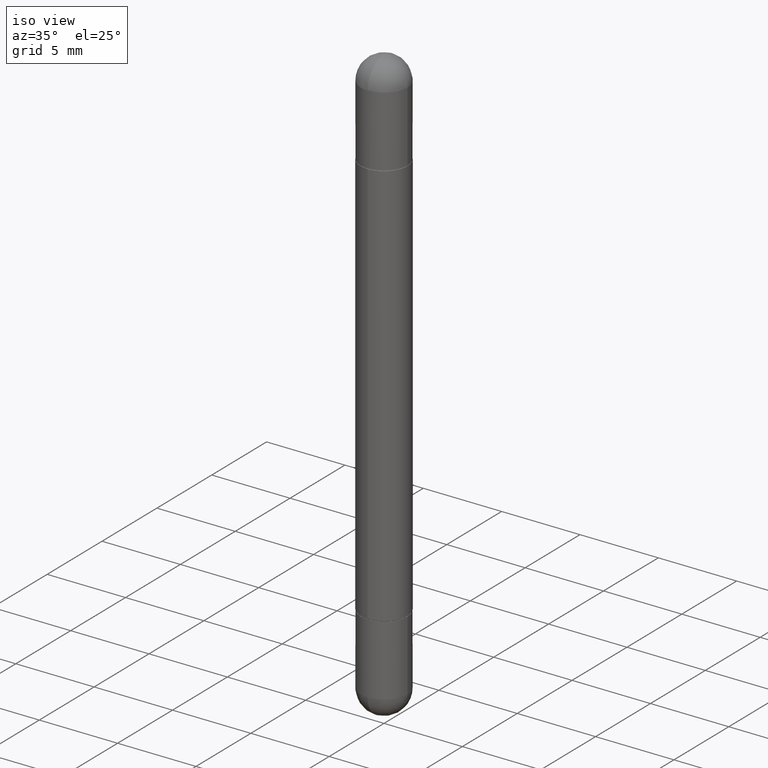
[diagram: clean part render]
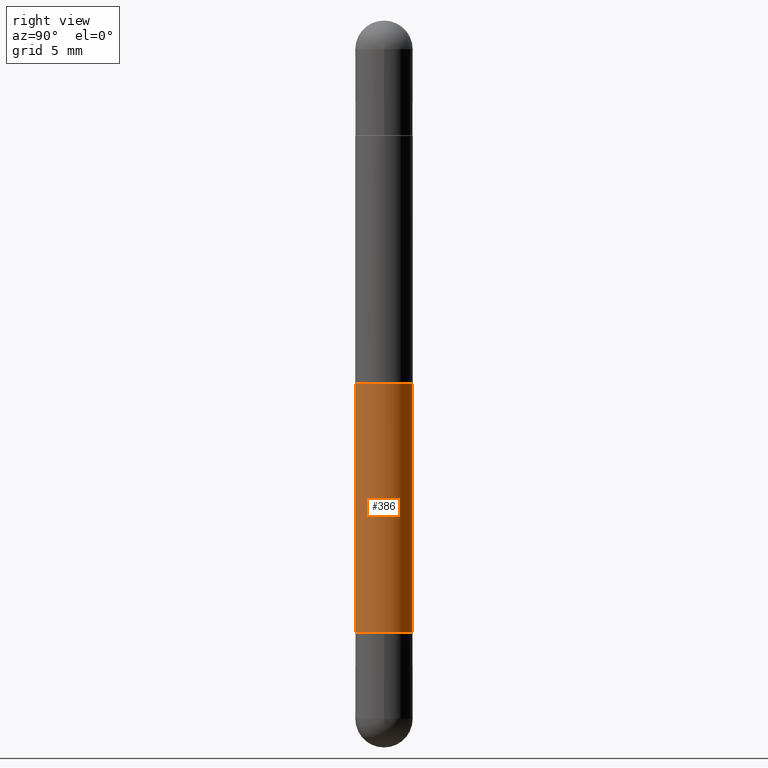
[diagram: tour spotlight — one face highlighted and labeled with its STEP entity id]
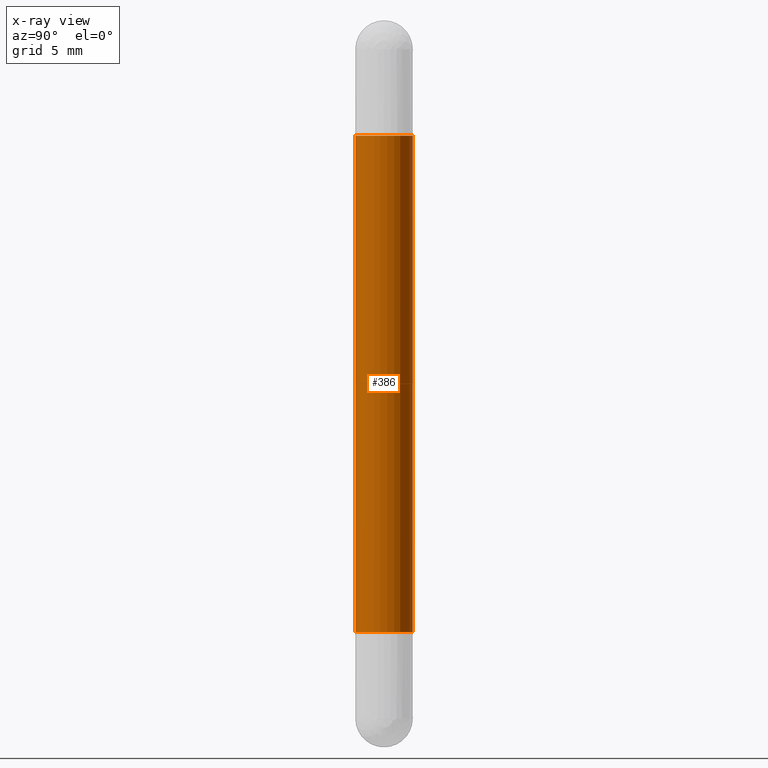
[diagram: x-ray of the same camera — body ghosted, this tour face saturated]
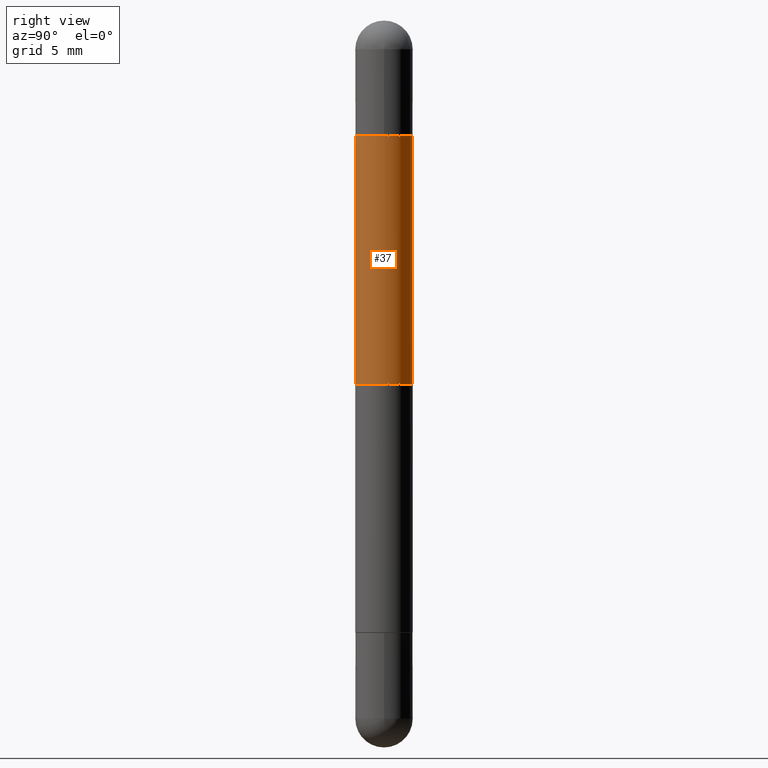
[diagram: tour spotlight — one face highlighted and labeled with its STEP entity id]
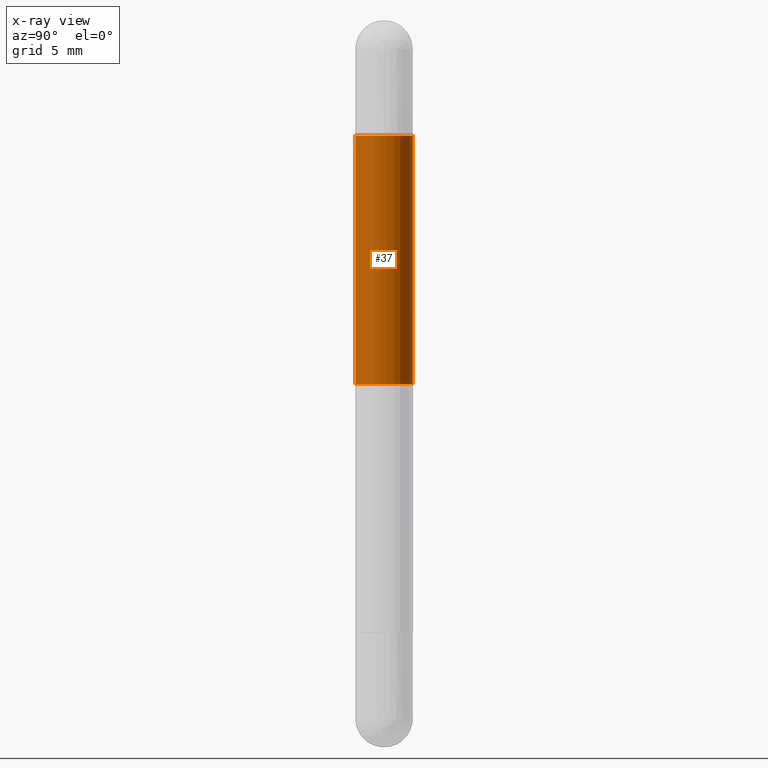
[diagram: x-ray of the same camera — body ghosted, this tour face saturated]
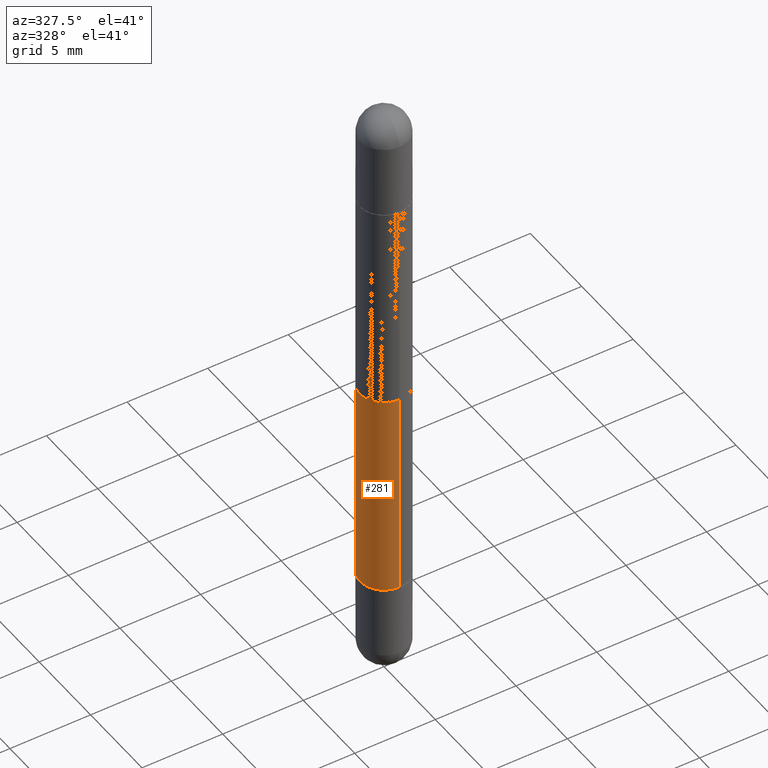
[diagram: tour spotlight — one face highlighted and labeled with its STEP entity id]
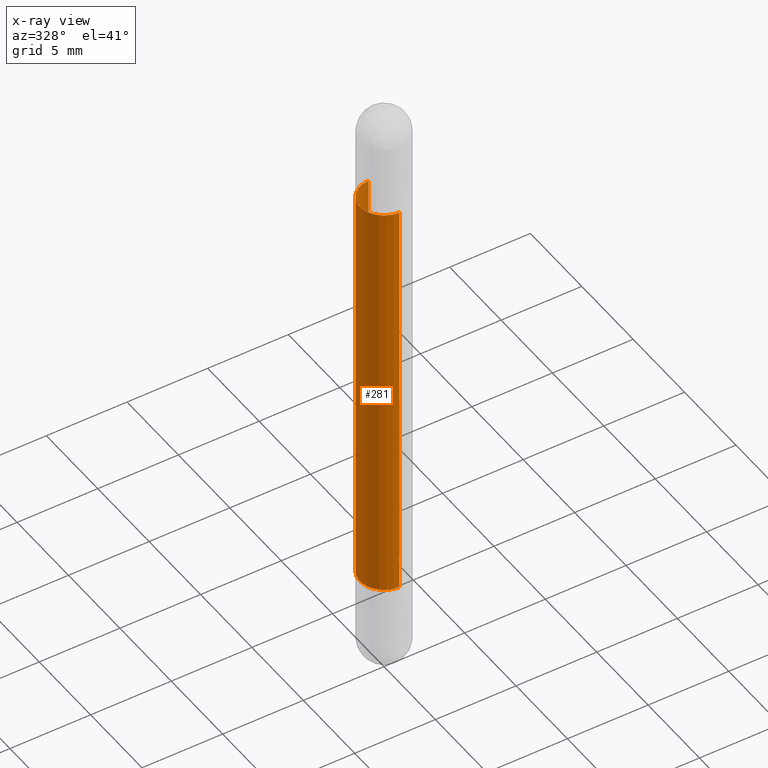
[diagram: x-ray of the same camera — body ghosted, this tour face saturated]
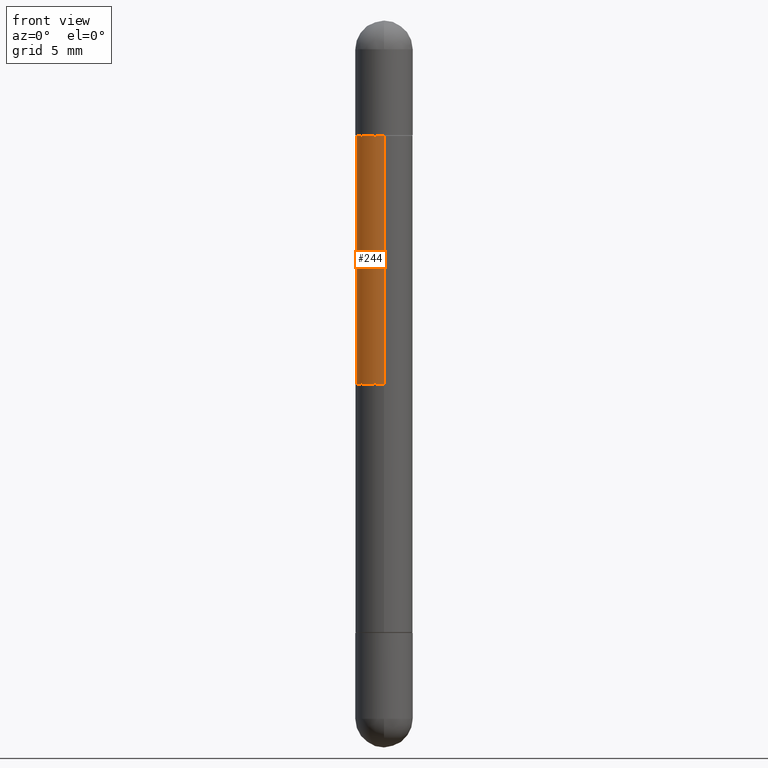
[diagram: tour spotlight — one face highlighted and labeled with its STEP entity id]
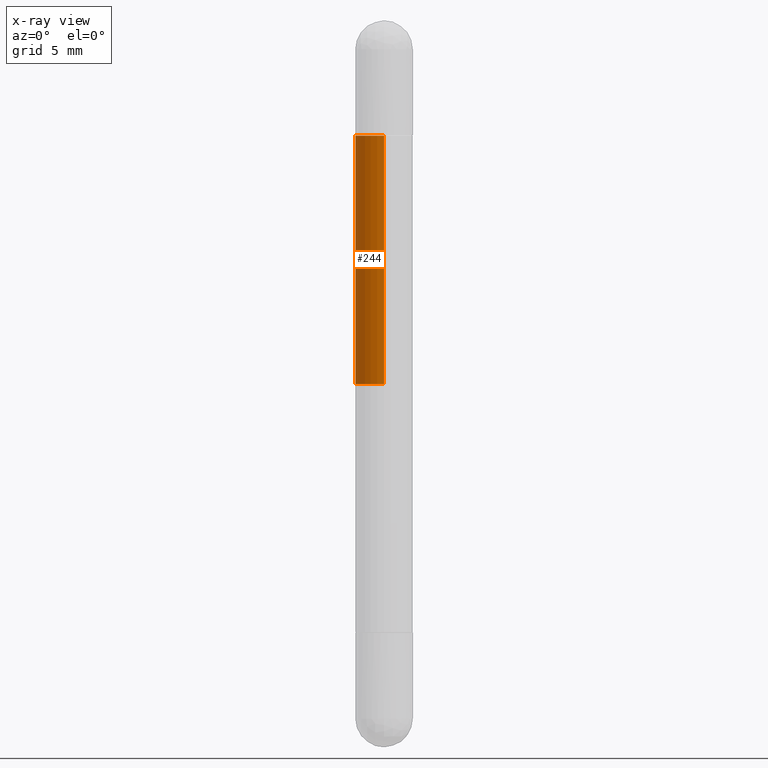
[diagram: x-ray of the same camera — body ghosted, this tour face saturated]
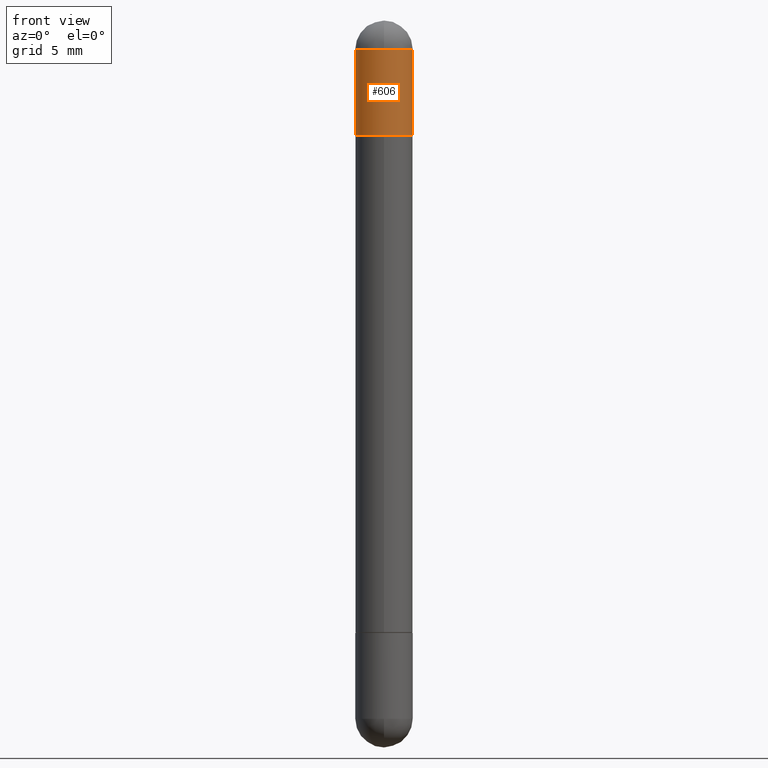
[diagram: tour spotlight — one face highlighted and labeled with its STEP entity id]
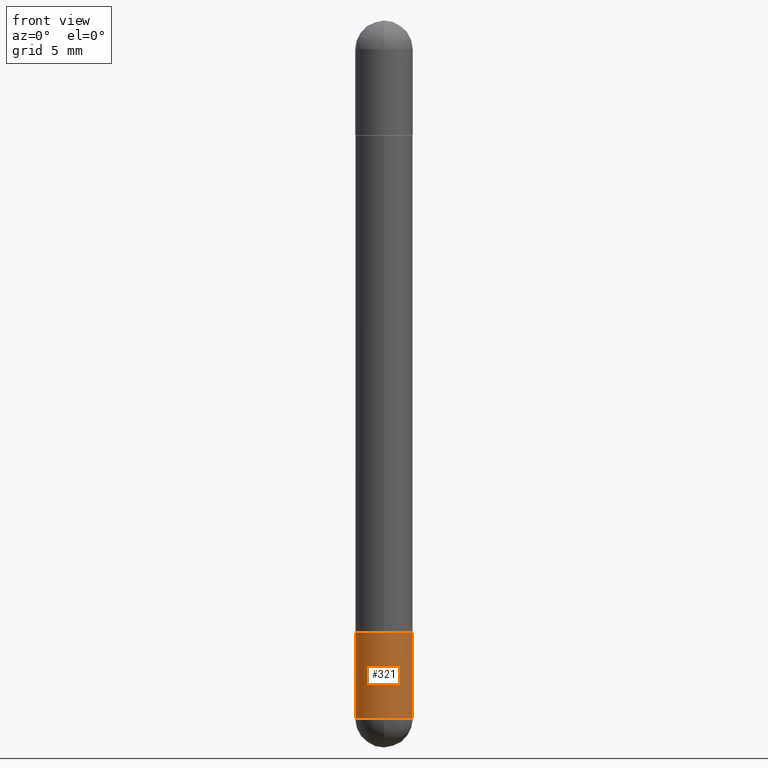
[diagram: tour spotlight — one face highlighted and labeled with its STEP entity id]
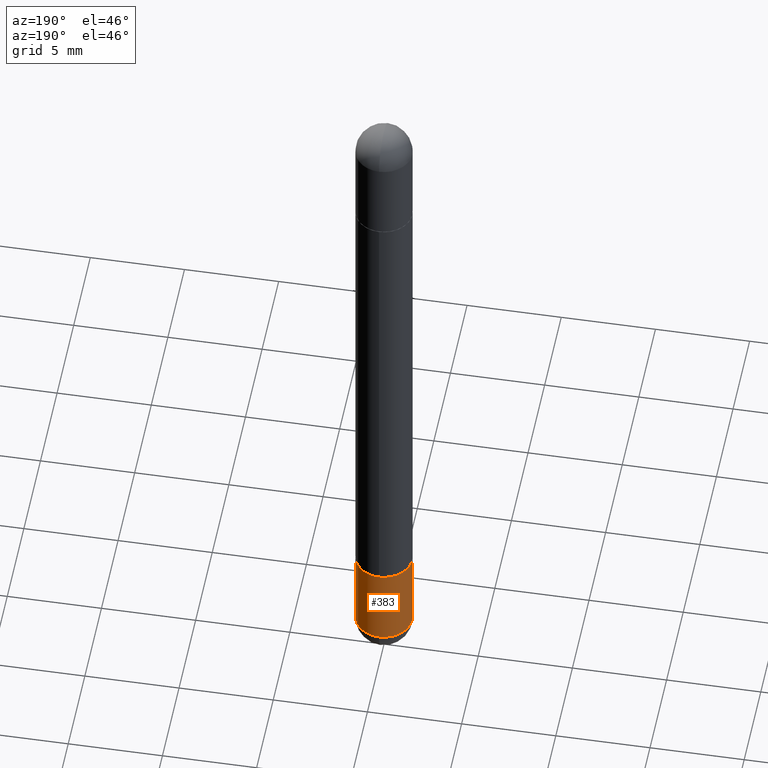
[diagram: tour spotlight — one face highlighted and labeled with its STEP entity id]
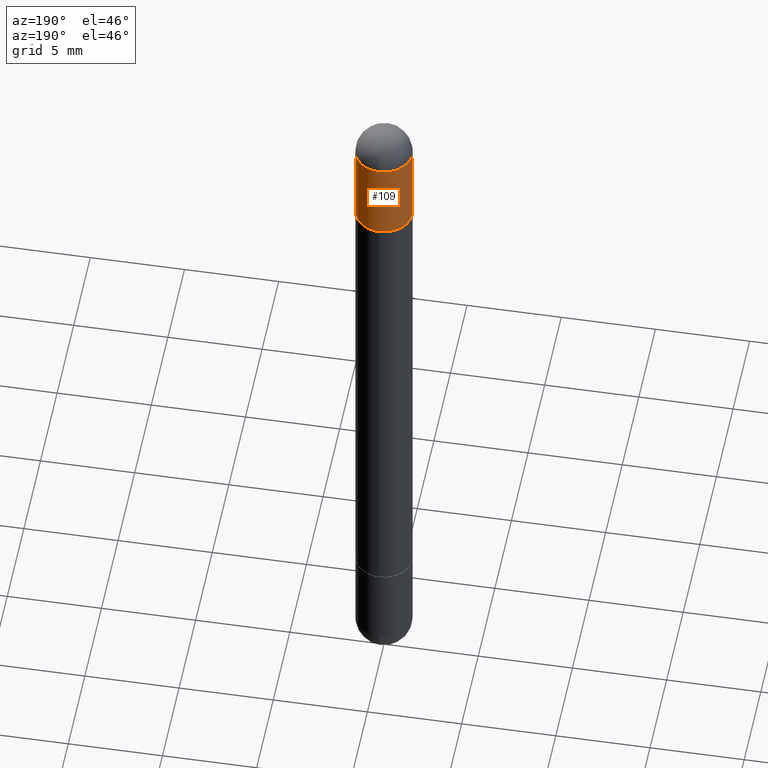
[diagram: tour spotlight — one face highlighted and labeled with its STEP entity id]
A machine part: a face-by-face anatomy tour. The part has 29 B-rep faces; the first image is the clean iso view, then the 8 largest visible faces are spotlighted one at a time (largest first), each with its STEP entity span.

Face 1 — right view, entity #386. An x-ray twin of the same camera follows (body ghosted, this face saturated) — the face is partly hidden behind the body. In plain terms, the highlighted cylindrical surface (edge-blend (fillet) strip) has radius 1.4999 mm, axis along (-0, 0, -1).
Definition (entity closure, byte-faithful):
#53 = CARTESIAN_POINT ( 'NONE',  ( -4.123439461173745257E-16, -0.05905000000000007465, -1.496100000000000430 ) ) ;
#131 = CIRCLE ( 'NONE', #585, 0.05905000000000013710 ) ;
#160 = VERTEX_POINT ( 'NONE', #442 ) ;
#182 = FACE_OUTER_BOUND ( 'NONE', #725, .T. ) ;
#192 = EDGE_CURVE ( 'NONE', #452, #637, #365, .T. ) ;
#217 = CARTESIAN_POINT ( 'NONE',  ( 4.051124067684407185E-16, 0.05904999999999575866, -0.2371999999999999387 ) ) ;
#228 = ORIENTED_EDGE ( 'NONE', *, *, #555, .T. ) ;
#232 = CARTESIAN_POINT ( 'NONE',  ( 3.087908753974678912E-29, -4.382096165907695555E-15, -1.258900000000000130 ) ) ;
#248 = LINE ( 'NONE', #53, #558 ) ;
#251 = AXIS2_PLACEMENT_3D ( 'NONE', #562, #503, #620 ) ;
#291 = CIRCLE ( 'NONE', #251, 0.05905000000000013710 ) ;
#301 = VECTOR ( 'NONE', #747, 39.37007874015748143 ) ;
#330 = ORIENTED_EDGE ( 'NONE', *, *, #396, .F. ) ;
#365 = LINE ( 'NONE', #809, #301 ) ;
#366 = VERTEX_POINT ( 'NONE', #678 ) ;
#386 = ADVANCED_FACE ( 'NONE', ( #182 ), #423, .T. ) ;
#396 = EDGE_CURVE ( 'NONE', #160, #452, #291, .T. ) ;
#423 = CYLINDRICAL_SURFACE ( 'NONE', #761, 0.05905000000000007465 ) ;
#428 = DIRECTION ( 'NONE',  ( -2.452862621315973370E-29, 3.480892974745964605E-15, -1.000000000000000000 ) ) ;
#432 = DIRECTION ( 'NONE',  ( -2.452862621315973651E-29, 3.480892974745964605E-15, -1.000000000000000000 ) ) ;
#442 = CARTESIAN_POINT ( 'NONE',  ( -4.123439461173440560E-16, -0.05905000000000451554, -0.2372000000000003272 ) ) ;
#452 = VERTEX_POINT ( 'NONE', #217 ) ;
#503 = DIRECTION ( 'NONE',  ( 2.452862621315973370E-29, -3.480892974745964605E-15, 1.000000000000000000 ) ) ;
#528 = DIRECTION ( 'NONE',  ( -2.452862621315973370E-29, 3.480892974745964605E-15, 1.000000000000000000 ) ) ;
#550 = ORIENTED_EDGE ( 'NONE', *, *, #192, .F. ) ;
#555 = EDGE_CURVE ( 'NONE', #366, #637, #131, .T. ) ;
#558 = VECTOR ( 'NONE', #432, 39.37007874015748143 ) ;
#562 = CARTESIAN_POINT ( 'NONE',  ( 3.087908753974678912E-29, -4.382096165907695555E-15, -0.2372000000000001330 ) ) ;
#585 = AXIS2_PLACEMENT_3D ( 'NONE', #232, #528, #790 ) ;
#605 = CARTESIAN_POINT ( 'NONE',  ( 4.051124067684279488E-16, 0.05904999999999575866, -1.258900000000000352 ) ) ;
#620 = DIRECTION ( 'NONE',  ( -6.982962677686265922E-15, -1.000000000000000000, -3.469747663417769114E-15 ) ) ;
#637 = VERTEX_POINT ( 'NONE', #605 ) ;
#678 = CARTESIAN_POINT ( 'NONE',  ( -4.123439461173440560E-16, -0.05905000000000451554, -1.258899999999999686 ) ) ;
#682 = EDGE_CURVE ( 'NONE', #160, #366, #248, .T. ) ;
#686 = DIRECTION ( 'NONE',  ( -6.982962677686265922E-15, -1.000000000000000000, -4.626330217890363814E-15 ) ) ;
#725 = EDGE_LOOP ( 'NONE', ( #550, #330, #768, #228 ) ) ;
#747 = DIRECTION ( 'NONE',  ( -2.452862621315973651E-29, 3.480892974745964605E-15, -1.000000000000000000 ) ) ;
#755 = CARTESIAN_POINT ( 'NONE',  ( 0.000000000000000000, 0.000000000000000000, -1.496100000000000207 ) ) ;
#761 = AXIS2_PLACEMENT_3D ( 'NONE', #755, #428, #686 ) ;
#768 = ORIENTED_EDGE ( 'NONE', *, *, #682, .T. ) ;
#790 = DIRECTION ( 'NONE',  ( -6.982962677686265922E-15, -1.000000000000000000, 4.626330217890359081E-15 ) ) ;
#809 = CARTESIAN_POINT ( 'NONE',  ( 4.051124067684094106E-16, 0.05905000000000007465, -1.496099999999999985 ) ) ;

Face 2 — right view, entity #37. An x-ray twin of the same camera follows (body ghosted, this face saturated) — the face is partly hidden behind the body. In plain terms, the highlighted cylindrical surface (edge-blend (fillet) strip) has radius 1.4999 mm, axis along (-0, 0, -1).
Definition (entity closure, byte-faithful):
#20 = CYLINDRICAL_SURFACE ( 'NONE', #495, 0.05905000000000007465 ) ;
#31 = LINE ( 'NONE', #395, #76 ) ;
#37 = ADVANCED_FACE ( 'NONE', ( #339 ), #20, .T. ) ;
#57 = CARTESIAN_POINT ( 'NONE',  ( -4.123439461173745257E-16, -0.05905000000000007465, -1.496100000000000430 ) ) ;
#65 = AXIS2_PLACEMENT_3D ( 'NONE', #593, #247, #277 ) ;
#76 = VECTOR ( 'NONE', #105, 39.37007874015748143 ) ;
#105 = DIRECTION ( 'NONE',  ( -2.452862621315973651E-29, 3.480892974745964605E-15, -1.000000000000000000 ) ) ;
#111 = DIRECTION ( 'NONE',  ( -0.000000000000000000, -0.000000000000000000, -1.000000000000000000 ) ) ;
#151 = ORIENTED_EDGE ( 'NONE', *, *, #618, .F. ) ;
#153 = CARTESIAN_POINT ( 'NONE',  ( -4.123439461173499231E-16, -0.05905000000000267674, -0.7480500000000001037 ) ) ;
#158 = VERTEX_POINT ( 'NONE', #200 ) ;
#179 = AXIS2_PLACEMENT_3D ( 'NONE', #718, #111, #599 ) ;
#200 = CARTESIAN_POINT ( 'NONE',  ( 4.051124067684401762E-16, 0.05904999999999747257, -0.7480500000000001037 ) ) ;
#245 = DIRECTION ( 'NONE',  ( -2.452862621315973651E-29, 3.480892974745964605E-15, -1.000000000000000000 ) ) ;
#247 = DIRECTION ( 'NONE',  ( 2.452862621315973370E-29, -3.480892974745964605E-15, 1.000000000000000000 ) ) ;
#277 = DIRECTION ( 'NONE',  ( -6.982962677686265922E-15, -1.000000000000000000, -3.469747663417769114E-15 ) ) ;
#290 = VERTEX_POINT ( 'NONE', #607 ) ;
#332 = ORIENTED_EDGE ( 'NONE', *, *, #667, .T. ) ;
#339 = FACE_OUTER_BOUND ( 'NONE', #661, .T. ) ;
#395 = CARTESIAN_POINT ( 'NONE',  ( 4.051124067684094106E-16, 0.05905000000000007465, -1.496099999999999985 ) ) ;
#470 = CIRCLE ( 'NONE', #179, 0.05905000000000007465 ) ;
#481 = EDGE_CURVE ( 'NONE', #586, #290, #736, .T. ) ;
#495 = AXIS2_PLACEMENT_3D ( 'NONE', #520, #776, #733 ) ;
#512 = EDGE_CURVE ( 'NONE', #158, #580, #470, .T. ) ;
#516 = CARTESIAN_POINT ( 'NONE',  ( -4.123439461173440560E-16, -0.05905000000000451554, -0.2372000000000003272 ) ) ;
#520 = CARTESIAN_POINT ( 'NONE',  ( 0.000000000000000000, 0.000000000000000000, -1.496100000000000207 ) ) ;
#569 = ORIENTED_EDGE ( 'NONE', *, *, #512, .F. ) ;
#580 = VERTEX_POINT ( 'NONE', #153 ) ;
#586 = VERTEX_POINT ( 'NONE', #516 ) ;
#593 = CARTESIAN_POINT ( 'NONE',  ( 3.087908753974678912E-29, -4.382096165907695555E-15, -0.2372000000000001330 ) ) ;
#599 = DIRECTION ( 'NONE',  ( -1.000000000000000000, 0.000000000000000000, 0.000000000000000000 ) ) ;
#607 = CARTESIAN_POINT ( 'NONE',  ( 4.051124067684407185E-16, 0.05904999999999575866, -0.2371999999999999387 ) ) ;
#618 = EDGE_CURVE ( 'NONE', #290, #158, #31, .T. ) ;
#661 = EDGE_LOOP ( 'NONE', ( #151, #789, #332, #569 ) ) ;
#667 = EDGE_CURVE ( 'NONE', #586, #580, #685, .T. ) ;
#685 = LINE ( 'NONE', #57, #751 ) ;
#718 = CARTESIAN_POINT ( 'NONE',  ( 1.834863883875414185E-29, -2.603881989758719060E-15, -0.7480500000000001037 ) ) ;
#733 = DIRECTION ( 'NONE',  ( -6.982962677686265922E-15, -1.000000000000000000, -4.626330217890363814E-15 ) ) ;
#736 = CIRCLE ( 'NONE', #65, 0.05905000000000013710 ) ;
#751 = VECTOR ( 'NONE', #245, 39.37007874015748143 ) ;
#776 = DIRECTION ( 'NONE',  ( -2.452862621315973370E-29, 3.480892974745964605E-15, -1.000000000000000000 ) ) ;
#789 = ORIENTED_EDGE ( 'NONE', *, *, #481, .F. ) ;

Face 3 — auxiliary view, entity #281. An x-ray twin of the same camera follows (body ghosted, this face saturated) — the face is partly hidden behind the body. In plain terms, the highlighted cylindrical surface (edge-blend (fillet) strip) has radius 1.4999 mm, axis along (-0, 0, -1).
Definition (entity closure, byte-faithful):
#28 = ORIENTED_EDGE ( 'NONE', *, *, #192, .T. ) ;
#32 = DIRECTION ( 'NONE',  ( -2.452862621315973370E-29, 3.480892974745964605E-15, 1.000000000000000000 ) ) ;
#53 = CARTESIAN_POINT ( 'NONE',  ( -4.123439461173745257E-16, -0.05905000000000007465, -1.496100000000000430 ) ) ;
#116 = DIRECTION ( 'NONE',  ( -6.982962677686265922E-15, -1.000000000000000000, -4.626330217890363814E-15 ) ) ;
#120 = CYLINDRICAL_SURFACE ( 'NONE', #469, 0.05905000000000007465 ) ;
#144 = ORIENTED_EDGE ( 'NONE', *, *, #344, .F. ) ;
#160 = VERTEX_POINT ( 'NONE', #442 ) ;
#172 = EDGE_CURVE ( 'NONE', #637, #366, #272, .T. ) ;
#184 = CARTESIAN_POINT ( 'NONE',  ( 3.087908753974678912E-29, -4.382096165907695555E-15, -0.2372000000000001330 ) ) ;
#192 = EDGE_CURVE ( 'NONE', #452, #637, #365, .T. ) ;
#217 = CARTESIAN_POINT ( 'NONE',  ( 4.051124067684407185E-16, 0.05904999999999575866, -0.2371999999999999387 ) ) ;
#248 = LINE ( 'NONE', #53, #558 ) ;
#272 = CIRCLE ( 'NONE', #647, 0.05905000000000013710 ) ;
#281 = ADVANCED_FACE ( 'NONE', ( #738 ), #120, .T. ) ;
#282 = ORIENTED_EDGE ( 'NONE', *, *, #682, .F. ) ;
#301 = VECTOR ( 'NONE', #747, 39.37007874015748143 ) ;
#344 = EDGE_CURVE ( 'NONE', #452, #160, #773, .T. ) ;
#355 = DIRECTION ( 'NONE',  ( -2.452862621315973370E-29, 3.480892974745964605E-15, -1.000000000000000000 ) ) ;
#365 = LINE ( 'NONE', #809, #301 ) ;
#366 = VERTEX_POINT ( 'NONE', #678 ) ;
#402 = DIRECTION ( 'NONE',  ( -6.982962677686265922E-15, -1.000000000000000000, 4.626330217890359081E-15 ) ) ;
#425 = DIRECTION ( 'NONE',  ( 2.452862621315973370E-29, -3.480892974745964605E-15, 1.000000000000000000 ) ) ;
#432 = DIRECTION ( 'NONE',  ( -2.452862621315973651E-29, 3.480892974745964605E-15, -1.000000000000000000 ) ) ;
#442 = CARTESIAN_POINT ( 'NONE',  ( -4.123439461173440560E-16, -0.05905000000000451554, -0.2372000000000003272 ) ) ;
#452 = VERTEX_POINT ( 'NONE', #217 ) ;
#469 = AXIS2_PLACEMENT_3D ( 'NONE', #615, #355, #116 ) ;
#515 = ORIENTED_EDGE ( 'NONE', *, *, #172, .T. ) ;
#517 = CARTESIAN_POINT ( 'NONE',  ( 3.087908753974678912E-29, -4.382096165907695555E-15, -1.258900000000000130 ) ) ;
#558 = VECTOR ( 'NONE', #432, 39.37007874015748143 ) ;
#605 = CARTESIAN_POINT ( 'NONE',  ( 4.051124067684279488E-16, 0.05904999999999575866, -1.258900000000000352 ) ) ;
#614 = AXIS2_PLACEMENT_3D ( 'NONE', #184, #425, #672 ) ;
#615 = CARTESIAN_POINT ( 'NONE',  ( 0.000000000000000000, 0.000000000000000000, -1.496100000000000207 ) ) ;
#637 = VERTEX_POINT ( 'NONE', #605 ) ;
#647 = AXIS2_PLACEMENT_3D ( 'NONE', #517, #32, #402 ) ;
#657 = EDGE_LOOP ( 'NONE', ( #144, #28, #515, #282 ) ) ;
#672 = DIRECTION ( 'NONE',  ( -6.982962677686265922E-15, -1.000000000000000000, -3.469747663417769114E-15 ) ) ;
#678 = CARTESIAN_POINT ( 'NONE',  ( -4.123439461173440560E-16, -0.05905000000000451554, -1.258899999999999686 ) ) ;
#682 = EDGE_CURVE ( 'NONE', #160, #366, #248, .T. ) ;
#738 = FACE_OUTER_BOUND ( 'NONE', #657, .T. ) ;
#747 = DIRECTION ( 'NONE',  ( -2.452862621315973651E-29, 3.480892974745964605E-15, -1.000000000000000000 ) ) ;
#773 = CIRCLE ( 'NONE', #614, 0.05905000000000013710 ) ;
#809 = CARTESIAN_POINT ( 'NONE',  ( 4.051124067684094106E-16, 0.05905000000000007465, -1.496099999999999985 ) ) ;

Face 4 — front view, entity #244. An x-ray twin of the same camera follows (body ghosted, this face saturated) — the face is partly hidden behind the body. In plain terms, the highlighted cylindrical surface (edge-blend (fillet) strip) has radius 1.4999 mm, axis along (-0, 0, -1).
Definition (entity closure, byte-faithful):
#31 = LINE ( 'NONE', #395, #76 ) ;
#47 = DIRECTION ( 'NONE',  ( -2.452862621315973370E-29, 3.480892974745964605E-15, -1.000000000000000000 ) ) ;
#57 = CARTESIAN_POINT ( 'NONE',  ( -4.123439461173745257E-16, -0.05905000000000007465, -1.496100000000000430 ) ) ;
#76 = VECTOR ( 'NONE', #105, 39.37007874015748143 ) ;
#105 = DIRECTION ( 'NONE',  ( -2.452862621315973651E-29, 3.480892974745964605E-15, -1.000000000000000000 ) ) ;
#153 = CARTESIAN_POINT ( 'NONE',  ( -4.123439461173499231E-16, -0.05905000000000267674, -0.7480500000000001037 ) ) ;
#158 = VERTEX_POINT ( 'NONE', #200 ) ;
#191 = AXIS2_PLACEMENT_3D ( 'NONE', #243, #608, #542 ) ;
#200 = CARTESIAN_POINT ( 'NONE',  ( 4.051124067684401762E-16, 0.05904999999999747257, -0.7480500000000001037 ) ) ;
#236 = DIRECTION ( 'NONE',  ( -1.000000000000000000, 0.000000000000000000, 0.000000000000000000 ) ) ;
#243 = CARTESIAN_POINT ( 'NONE',  ( 3.087908753974678912E-29, -4.382096165907695555E-15, -0.2372000000000001330 ) ) ;
#244 = ADVANCED_FACE ( 'NONE', ( #792 ), #460, .T. ) ;
#245 = DIRECTION ( 'NONE',  ( -2.452862621315973651E-29, 3.480892974745964605E-15, -1.000000000000000000 ) ) ;
#286 = ORIENTED_EDGE ( 'NONE', *, *, #618, .T. ) ;
#290 = VERTEX_POINT ( 'NONE', #607 ) ;
#389 = CIRCLE ( 'NONE', #405, 0.05905000000000007465 ) ;
#395 = CARTESIAN_POINT ( 'NONE',  ( 4.051124067684094106E-16, 0.05905000000000007465, -1.496099999999999985 ) ) ;
#399 = ORIENTED_EDGE ( 'NONE', *, *, #662, .F. ) ;
#405 = AXIS2_PLACEMENT_3D ( 'NONE', #537, #798, #236 ) ;
#460 = CYLINDRICAL_SURFACE ( 'NONE', #650, 0.05905000000000007465 ) ;
#463 = ORIENTED_EDGE ( 'NONE', *, *, #667, .F. ) ;
#475 = CARTESIAN_POINT ( 'NONE',  ( 0.000000000000000000, 0.000000000000000000, -1.496100000000000207 ) ) ;
#492 = DIRECTION ( 'NONE',  ( -6.982962677686265922E-15, -1.000000000000000000, -4.626330217890363814E-15 ) ) ;
#516 = CARTESIAN_POINT ( 'NONE',  ( -4.123439461173440560E-16, -0.05905000000000451554, -0.2372000000000003272 ) ) ;
#537 = CARTESIAN_POINT ( 'NONE',  ( 1.834863883875414185E-29, -2.603881989758719060E-15, -0.7480500000000001037 ) ) ;
#542 = DIRECTION ( 'NONE',  ( -6.982962677686265922E-15, -1.000000000000000000, -3.469747663417769114E-15 ) ) ;
#580 = VERTEX_POINT ( 'NONE', #153 ) ;
#586 = VERTEX_POINT ( 'NONE', #516 ) ;
#607 = CARTESIAN_POINT ( 'NONE',  ( 4.051124067684407185E-16, 0.05904999999999575866, -0.2371999999999999387 ) ) ;
#608 = DIRECTION ( 'NONE',  ( 2.452862621315973370E-29, -3.480892974745964605E-15, 1.000000000000000000 ) ) ;
#618 = EDGE_CURVE ( 'NONE', #290, #158, #31, .T. ) ;
#650 = AXIS2_PLACEMENT_3D ( 'NONE', #475, #47, #492 ) ;
#662 = EDGE_CURVE ( 'NONE', #290, #586, #803, .T. ) ;
#667 = EDGE_CURVE ( 'NONE', #586, #580, #685, .T. ) ;
#674 = EDGE_LOOP ( 'NONE', ( #399, #286, #702, #463 ) ) ;
#685 = LINE ( 'NONE', #57, #751 ) ;
#702 = ORIENTED_EDGE ( 'NONE', *, *, #811, .F. ) ;
#751 = VECTOR ( 'NONE', #245, 39.37007874015748143 ) ;
#792 = FACE_OUTER_BOUND ( 'NONE', #674, .T. ) ;
#798 = DIRECTION ( 'NONE',  ( -0.000000000000000000, -0.000000000000000000, -1.000000000000000000 ) ) ;
#803 = CIRCLE ( 'NONE', #191, 0.05905000000000013710 ) ;
#811 = EDGE_CURVE ( 'NONE', #580, #158, #389, .T. ) ;

Face 5 — front view, entity #606. In plain terms, the highlighted cylindrical surface (edge-blend (fillet) strip) has radius 1.4999 mm, axis along (-0, 0, -1).
Definition (entity closure, byte-faithful):
#12 = VERTEX_POINT ( 'NONE', #409 ) ;
#15 = CARTESIAN_POINT ( 'NONE',  ( -0.05905000000000001914, -4.303062891628101254E-15, -0.05905000000000028976 ) ) ;
#18 = EDGE_CURVE ( 'NONE', #411, #633, #43, .T. ) ;
#21 = AXIS2_PLACEMENT_3D ( 'NONE', #146, #393, #640 ) ;
#38 = CARTESIAN_POINT ( 'NONE',  ( 0.05905000000000001914, -4.811261284925853162E-15, -0.2362000000000003264 ) ) ;
#42 = ORIENTED_EDGE ( 'NONE', *, *, #231, .F. ) ;
#43 = CIRCLE ( 'NONE', #21, 0.05905000000000001914 ) ;
#61 = AXIS2_PLACEMENT_3D ( 'NONE', #308, #415, #368 ) ;
#79 = ORIENTED_EDGE ( 'NONE', *, *, #446, .T. ) ;
#97 = EDGE_LOOP ( 'NONE', ( #150, #79, #774, #42, #575 ) ) ;
#146 = CARTESIAN_POINT ( 'NONE',  ( 3.514260947928350449E-29, -5.017433257984542594E-15, -0.05905000000000028976 ) ) ;
#150 = ORIENTED_EDGE ( 'NONE', *, *, #695, .F. ) ;
#157 = VECTOR ( 'NONE', #319, 39.37007874015748143 ) ;
#164 = VERTEX_POINT ( 'NONE', #15 ) ;
#231 = EDGE_CURVE ( 'NONE', #633, #488, #764, .T. ) ;
#250 = CARTESIAN_POINT ( 'NONE',  ( -4.051124067683763770E-16, -0.05905000000000539678, -0.05905000000000049099 ) ) ;
#278 = CARTESIAN_POINT ( 'NONE',  ( -0.05905000000000001914, 4.051124067684090655E-16, -1.496100000000000207 ) ) ;
#285 = LINE ( 'NONE', #278, #635 ) ;
#308 = CARTESIAN_POINT ( 'NONE',  ( 3.514260947928350449E-29, -5.017433257984542594E-15, -0.05905000000000028976 ) ) ;
#319 = DIRECTION ( 'NONE',  ( -2.445468806185136877E-29, 3.491481338843145188E-15, -1.000000000000000000 ) ) ;
#351 = CARTESIAN_POINT ( 'NONE',  ( 3.081046148912652946E-29, -4.398917338808479031E-15, -0.2362000000000003264 ) ) ;
#360 = AXIS2_PLACEMENT_3D ( 'NONE', #351, #525, #785 ) ;
#368 = DIRECTION ( 'NONE',  ( 1.000000000000000000, -6.982962677686270655E-15, 0.000000000000000000 ) ) ;
#393 = DIRECTION ( 'NONE',  ( 2.445468806185136597E-29, -3.491481338843145583E-15, 1.000000000000000000 ) ) ;
#409 = CARTESIAN_POINT ( 'NONE',  ( -0.05905000000000001914, -4.303062891628101254E-15, -0.2362000000000003264 ) ) ;
#411 = VERTEX_POINT ( 'NONE', #250 ) ;
#412 = CARTESIAN_POINT ( 'NONE',  ( 0.05905000000000001914, -5.120519244513884944E-15, -0.05905000000000028976 ) ) ;
#415 = DIRECTION ( 'NONE',  ( 2.445468806185136597E-29, -3.491481338843145583E-15, 1.000000000000000000 ) ) ;
#446 = EDGE_CURVE ( 'NONE', #164, #12, #285, .T. ) ;
#453 = EDGE_CURVE ( 'NONE', #12, #488, #653, .T. ) ;
#466 = CYLINDRICAL_SURFACE ( 'NONE', #683, 0.05905000000000001914 ) ;
#486 = CIRCLE ( 'NONE', #61, 0.05905000000000001914 ) ;
#488 = VERTEX_POINT ( 'NONE', #38 ) ;
#525 = DIRECTION ( 'NONE',  ( 2.445468806185136597E-29, -3.491481338843145583E-15, 1.000000000000000000 ) ) ;
#575 = ORIENTED_EDGE ( 'NONE', *, *, #18, .F. ) ;
#606 = ADVANCED_FACE ( 'NONE', ( #731 ), #466, .T. ) ;
#628 = CARTESIAN_POINT ( 'NONE',  ( 0.05905000000000001914, -4.123439461173741806E-16, -1.496100000000000207 ) ) ;
#633 = VERTEX_POINT ( 'NONE', #412 ) ;
#635 = VECTOR ( 'NONE', #652, 39.37007874015748143 ) ;
#640 = DIRECTION ( 'NONE',  ( 1.000000000000000000, -6.982962677686270655E-15, 0.000000000000000000 ) ) ;
#652 = DIRECTION ( 'NONE',  ( -2.445468806185136877E-29, 3.491481338843145188E-15, -1.000000000000000000 ) ) ;
#653 = CIRCLE ( 'NONE', #360, 0.05905000000000001914 ) ;
#659 = DIRECTION ( 'NONE',  ( 1.000000000000000000, -6.982962677686266711E-15, 0.000000000000000000 ) ) ;
#665 = CARTESIAN_POINT ( 'NONE',  ( 0.000000000000000000, 0.000000000000000000, -1.496100000000000207 ) ) ;
#683 = AXIS2_PLACEMENT_3D ( 'NONE', #665, #704, #659 ) ;
#695 = EDGE_CURVE ( 'NONE', #164, #411, #486, .T. ) ;
#704 = DIRECTION ( 'NONE',  ( -2.445468806185136597E-29, 3.491481338843145583E-15, -1.000000000000000000 ) ) ;
#731 = FACE_OUTER_BOUND ( 'NONE', #97, .T. ) ;
#764 = LINE ( 'NONE', #628, #157 ) ;
#774 = ORIENTED_EDGE ( 'NONE', *, *, #453, .T. ) ;
#785 = DIRECTION ( 'NONE',  ( 1.000000000000000000, -6.982962677686270655E-15, 0.000000000000000000 ) ) ;

Face 6 — front view, entity #321. In plain terms, the highlighted cylindrical surface (edge-blend (fillet) strip) has radius 1.4999 mm, axis along (-0, 0, 1).
Definition (entity closure, byte-faithful):
#2 = CIRCLE ( 'NONE', #788, 0.05905000000000001914 ) ;
#17 = DIRECTION ( 'NONE',  ( 1.000000000000000000, -6.982962677686270655E-15, 0.000000000000000000 ) ) ;
#50 = DIRECTION ( 'NONE',  ( -2.445468806185136597E-29, 3.491481338843145583E-15, 1.000000000000000000 ) ) ;
#52 = CARTESIAN_POINT ( 'NONE',  ( 3.081046148912652946E-29, -4.398917338808479031E-15, -1.259899999999999798 ) ) ;
#56 = CARTESIAN_POINT ( 'NONE',  ( 3.514260947928350449E-29, -5.017433257984542594E-15, -1.437049999999999939 ) ) ;
#73 = CARTESIAN_POINT ( 'NONE',  ( 0.05905000000000001914, -4.811261284925853162E-15, -1.259899999999999798 ) ) ;
#87 = ORIENTED_EDGE ( 'NONE', *, *, #553, .T. ) ;
#92 = CARTESIAN_POINT ( 'NONE',  ( 3.514260947928350449E-29, -5.017433257984542594E-15, -1.437049999999999939 ) ) ;
#110 = ORIENTED_EDGE ( 'NONE', *, *, #444, .T. ) ;
#141 = EDGE_CURVE ( 'NONE', #471, #201, #720, .T. ) ;
#171 = DIRECTION ( 'NONE',  ( -2.445468806185136597E-29, 3.491481338843145583E-15, 1.000000000000000000 ) ) ;
#175 = FACE_OUTER_BOUND ( 'NONE', #390, .T. ) ;
#199 = AXIS2_PLACEMENT_3D ( 'NONE', #92, #578, #17 ) ;
#201 = VERTEX_POINT ( 'NONE', #490 ) ;
#212 = ORIENTED_EDGE ( 'NONE', *, *, #141, .F. ) ;
#242 = CARTESIAN_POINT ( 'NONE',  ( 0.000000000000000000, 0.000000000000000000, 0.000000000000000000 ) ) ;
#295 = EDGE_CURVE ( 'NONE', #424, #352, #2, .T. ) ;
#321 = ADVANCED_FACE ( 'NONE', ( #175 ), #730, .T. ) ;
#336 = EDGE_CURVE ( 'NONE', #201, #454, #388, .T. ) ;
#352 = VERTEX_POINT ( 'NONE', #363 ) ;
#363 = CARTESIAN_POINT ( 'NONE',  ( 0.05905000000000001914, -5.120519244513884944E-15, -1.437049999999999939 ) ) ;
#370 = ORIENTED_EDGE ( 'NONE', *, *, #295, .T. ) ;
#373 = AXIS2_PLACEMENT_3D ( 'NONE', #242, #171, #544 ) ;
#388 = CIRCLE ( 'NONE', #431, 0.05905000000000001914 ) ;
#390 = EDGE_LOOP ( 'NONE', ( #212, #110, #370, #87, #445 ) ) ;
#407 = CARTESIAN_POINT ( 'NONE',  ( 0.05905000000000001914, -4.123439461173741806E-16, 2.879382386107500921E-30 ) ) ;
#424 = VERTEX_POINT ( 'NONE', #451 ) ;
#431 = AXIS2_PLACEMENT_3D ( 'NONE', #52, #50, #804 ) ;
#444 = EDGE_CURVE ( 'NONE', #471, #424, #698, .T. ) ;
#445 = ORIENTED_EDGE ( 'NONE', *, *, #336, .F. ) ;
#451 = CARTESIAN_POINT ( 'NONE',  ( -4.195754854663065087E-16, -0.05905000000000539678, -1.437049999999999716 ) ) ;
#454 = VERTEX_POINT ( 'NONE', #73 ) ;
#471 = VERTEX_POINT ( 'NONE', #501 ) ;
#476 = DIRECTION ( 'NONE',  ( -2.445468806185136877E-29, 3.491481338843145188E-15, 1.000000000000000000 ) ) ;
#484 = VECTOR ( 'NONE', #524, 39.37007874015748143 ) ;
#490 = CARTESIAN_POINT ( 'NONE',  ( -0.05905000000000001914, -4.288599812930171320E-15, -1.259899999999999798 ) ) ;
#501 = CARTESIAN_POINT ( 'NONE',  ( -0.05905000000000001914, -4.288599812930171320E-15, -1.437049999999999939 ) ) ;
#524 = DIRECTION ( 'NONE',  ( -2.445468806185136877E-29, 3.491481338843145188E-15, 1.000000000000000000 ) ) ;
#534 = DIRECTION ( 'NONE',  ( 1.000000000000000000, -6.982962677686270655E-15, 0.000000000000000000 ) ) ;
#543 = VECTOR ( 'NONE', #476, 39.37007874015748143 ) ;
#544 = DIRECTION ( 'NONE',  ( 1.000000000000000000, -6.982962677686266711E-15, 4.876176775795935793E-29 ) ) ;
#553 = EDGE_CURVE ( 'NONE', #352, #454, #576, .T. ) ;
#576 = LINE ( 'NONE', #407, #484 ) ;
#578 = DIRECTION ( 'NONE',  ( -2.445468806185136597E-29, 3.491481338843145583E-15, 1.000000000000000000 ) ) ;
#591 = CARTESIAN_POINT ( 'NONE',  ( -0.05905000000000001914, 4.195754854663392958E-16, -2.904631170795522943E-30 ) ) ;
#698 = CIRCLE ( 'NONE', #199, 0.05905000000000001914 ) ;
#720 = LINE ( 'NONE', #591, #543 ) ;
#730 = CYLINDRICAL_SURFACE ( 'NONE', #373, 0.05905000000000001914 ) ;
#741 = DIRECTION ( 'NONE',  ( -2.445468806185136597E-29, 3.491481338843145583E-15, 1.000000000000000000 ) ) ;
#788 = AXIS2_PLACEMENT_3D ( 'NONE', #56, #741, #534 ) ;
#804 = DIRECTION ( 'NONE',  ( 1.000000000000000000, -6.982962677686270655E-15, 0.000000000000000000 ) ) ;

Face 7 — auxiliary view, entity #383. In plain terms, the highlighted cylindrical surface (edge-blend (fillet) strip) has radius 1.4999 mm, axis along (-0, 0, 1).
Definition (entity closure, byte-faithful):
#8 = ORIENTED_EDGE ( 'NONE', *, *, #141, .T. ) ;
#46 = AXIS2_PLACEMENT_3D ( 'NONE', #174, #180, #549 ) ;
#72 = VERTEX_POINT ( 'NONE', #349 ) ;
#73 = CARTESIAN_POINT ( 'NONE',  ( 0.05905000000000001914, -4.811261284925853162E-15, -1.259899999999999798 ) ) ;
#81 = ORIENTED_EDGE ( 'NONE', *, *, #595, .T. ) ;
#102 = DIRECTION ( 'NONE',  ( 1.000000000000000000, -6.982962677686270655E-15, 0.000000000000000000 ) ) ;
#139 = AXIS2_PLACEMENT_3D ( 'NONE', #435, #817, #500 ) ;
#141 = EDGE_CURVE ( 'NONE', #471, #201, #720, .T. ) ;
#174 = CARTESIAN_POINT ( 'NONE',  ( 0.000000000000000000, 0.000000000000000000, 0.000000000000000000 ) ) ;
#180 = DIRECTION ( 'NONE',  ( -2.445468806185136597E-29, 3.491481338843145583E-15, 1.000000000000000000 ) ) ;
#201 = VERTEX_POINT ( 'NONE', #490 ) ;
#209 = CARTESIAN_POINT ( 'NONE',  ( 3.514260947928350449E-29, -5.017433257984542594E-15, -1.437049999999999939 ) ) ;
#226 = AXIS2_PLACEMENT_3D ( 'NONE', #209, #348, #783 ) ;
#273 = ORIENTED_EDGE ( 'NONE', *, *, #477, .T. ) ;
#280 = ORIENTED_EDGE ( 'NONE', *, *, #413, .F. ) ;
#348 = DIRECTION ( 'NONE',  ( -2.445468806185136597E-29, 3.491481338843145583E-15, 1.000000000000000000 ) ) ;
#349 = CARTESIAN_POINT ( 'NONE',  ( 4.123439461174084467E-16, 0.05904999999999487742, -1.437050000000000161 ) ) ;
#352 = VERTEX_POINT ( 'NONE', #363 ) ;
#363 = CARTESIAN_POINT ( 'NONE',  ( 0.05905000000000001914, -5.120519244513884944E-15, -1.437049999999999939 ) ) ;
#369 = FACE_OUTER_BOUND ( 'NONE', #664, .T. ) ;
#383 = ADVANCED_FACE ( 'NONE', ( #369 ), #482, .T. ) ;
#407 = CARTESIAN_POINT ( 'NONE',  ( 0.05905000000000001914, -4.123439461173741806E-16, 2.879382386107500921E-30 ) ) ;
#413 = EDGE_CURVE ( 'NONE', #454, #201, #690, .T. ) ;
#435 = CARTESIAN_POINT ( 'NONE',  ( 3.081046148912652946E-29, -4.398917338808479031E-15, -1.259899999999999798 ) ) ;
#454 = VERTEX_POINT ( 'NONE', #73 ) ;
#471 = VERTEX_POINT ( 'NONE', #501 ) ;
#476 = DIRECTION ( 'NONE',  ( -2.445468806185136877E-29, 3.491481338843145188E-15, 1.000000000000000000 ) ) ;
#477 = EDGE_CURVE ( 'NONE', #352, #72, #749, .T. ) ;
#479 = ORIENTED_EDGE ( 'NONE', *, *, #553, .F. ) ;
#482 = CYLINDRICAL_SURFACE ( 'NONE', #46, 0.05905000000000001914 ) ;
#484 = VECTOR ( 'NONE', #524, 39.37007874015748143 ) ;
#490 = CARTESIAN_POINT ( 'NONE',  ( -0.05905000000000001914, -4.288599812930171320E-15, -1.259899999999999798 ) ) ;
#500 = DIRECTION ( 'NONE',  ( 1.000000000000000000, -6.982962677686270655E-15, 0.000000000000000000 ) ) ;
#501 = CARTESIAN_POINT ( 'NONE',  ( -0.05905000000000001914, -4.288599812930171320E-15, -1.437049999999999939 ) ) ;
#524 = DIRECTION ( 'NONE',  ( -2.445468806185136877E-29, 3.491481338843145188E-15, 1.000000000000000000 ) ) ;
#543 = VECTOR ( 'NONE', #476, 39.37007874015748143 ) ;
#549 = DIRECTION ( 'NONE',  ( 1.000000000000000000, -6.982962677686266711E-15, 4.876176775795935793E-29 ) ) ;
#553 = EDGE_CURVE ( 'NONE', #352, #454, #576, .T. ) ;
#556 = AXIS2_PLACEMENT_3D ( 'NONE', #645, #654, #102 ) ;
#565 = CIRCLE ( 'NONE', #226, 0.05905000000000001914 ) ;
#576 = LINE ( 'NONE', #407, #484 ) ;
#591 = CARTESIAN_POINT ( 'NONE',  ( -0.05905000000000001914, 4.195754854663392958E-16, -2.904631170795522943E-30 ) ) ;
#595 = EDGE_CURVE ( 'NONE', #72, #471, #565, .T. ) ;
#645 = CARTESIAN_POINT ( 'NONE',  ( 3.514260947928350449E-29, -5.017433257984542594E-15, -1.437049999999999939 ) ) ;
#654 = DIRECTION ( 'NONE',  ( -2.445468806185136597E-29, 3.491481338843145583E-15, 1.000000000000000000 ) ) ;
#664 = EDGE_LOOP ( 'NONE', ( #81, #8, #280, #479, #273 ) ) ;
#690 = CIRCLE ( 'NONE', #139, 0.05905000000000001914 ) ;
#720 = LINE ( 'NONE', #591, #543 ) ;
#749 = CIRCLE ( 'NONE', #556, 0.05905000000000001914 ) ;
#783 = DIRECTION ( 'NONE',  ( 1.000000000000000000, -6.982962677686270655E-15, 0.000000000000000000 ) ) ;
#817 = DIRECTION ( 'NONE',  ( -2.445468806185136597E-29, 3.491481338843145583E-15, 1.000000000000000000 ) ) ;

Face 8 — auxiliary view, entity #109. In plain terms, the highlighted cylindrical surface (edge-blend (fillet) strip) has radius 1.4999 mm, axis along (-0, 0, -1).
Definition (entity closure, byte-faithful):
#12 = VERTEX_POINT ( 'NONE', #409 ) ;
#15 = CARTESIAN_POINT ( 'NONE',  ( -0.05905000000000001914, -4.303062891628101254E-15, -0.05905000000000028976 ) ) ;
#19 = EDGE_LOOP ( 'NONE', ( #646, #353, #225, #491, #219 ) ) ;
#26 = CARTESIAN_POINT ( 'NONE',  ( 4.123439461174084467E-16, 0.05904999999999487742, -0.05905000000000008159 ) ) ;
#38 = CARTESIAN_POINT ( 'NONE',  ( 0.05905000000000001914, -4.811261284925853162E-15, -0.2362000000000003264 ) ) ;
#80 = VERTEX_POINT ( 'NONE', #26 ) ;
#101 = CARTESIAN_POINT ( 'NONE',  ( 0.000000000000000000, 0.000000000000000000, -1.496100000000000207 ) ) ;
#109 = ADVANCED_FACE ( 'NONE', ( #215 ), #584, .T. ) ;
#157 = VECTOR ( 'NONE', #319, 39.37007874015748143 ) ;
#162 = DIRECTION ( 'NONE',  ( 1.000000000000000000, -6.982962677686266711E-15, 0.000000000000000000 ) ) ;
#164 = VERTEX_POINT ( 'NONE', #15 ) ;
#168 = DIRECTION ( 'NONE',  ( 1.000000000000000000, -6.982962677686270655E-15, 0.000000000000000000 ) ) ;
#190 = CIRCLE ( 'NONE', #566, 0.05905000000000001914 ) ;
#205 = AXIS2_PLACEMENT_3D ( 'NONE', #214, #334, #401 ) ;
#214 = CARTESIAN_POINT ( 'NONE',  ( 3.514260947928350449E-29, -5.017433257984542594E-15, -0.05905000000000028976 ) ) ;
#215 = FACE_OUTER_BOUND ( 'NONE', #19, .T. ) ;
#219 = ORIENTED_EDGE ( 'NONE', *, *, #529, .T. ) ;
#225 = ORIENTED_EDGE ( 'NONE', *, *, #627, .F. ) ;
#231 = EDGE_CURVE ( 'NONE', #633, #488, #764, .T. ) ;
#274 = AXIS2_PLACEMENT_3D ( 'NONE', #283, #293, #341 ) ;
#278 = CARTESIAN_POINT ( 'NONE',  ( -0.05905000000000001914, 4.051124067684090655E-16, -1.496100000000000207 ) ) ;
#283 = CARTESIAN_POINT ( 'NONE',  ( 3.081046148912652946E-29, -4.398917338808479031E-15, -0.2362000000000003264 ) ) ;
#285 = LINE ( 'NONE', #278, #635 ) ;
#293 = DIRECTION ( 'NONE',  ( 2.445468806185136597E-29, -3.491481338843145583E-15, 1.000000000000000000 ) ) ;
#319 = DIRECTION ( 'NONE',  ( -2.445468806185136877E-29, 3.491481338843145188E-15, -1.000000000000000000 ) ) ;
#323 = AXIS2_PLACEMENT_3D ( 'NONE', #101, #601, #162 ) ;
#334 = DIRECTION ( 'NONE',  ( 2.445468806185136597E-29, -3.491481338843145583E-15, 1.000000000000000000 ) ) ;
#341 = DIRECTION ( 'NONE',  ( 1.000000000000000000, -6.982962677686270655E-15, 0.000000000000000000 ) ) ;
#353 = ORIENTED_EDGE ( 'NONE', *, *, #485, .F. ) ;
#401 = DIRECTION ( 'NONE',  ( 1.000000000000000000, -6.982962677686270655E-15, 0.000000000000000000 ) ) ;
#409 = CARTESIAN_POINT ( 'NONE',  ( -0.05905000000000001914, -4.303062891628101254E-15, -0.2362000000000003264 ) ) ;
#412 = CARTESIAN_POINT ( 'NONE',  ( 0.05905000000000001914, -5.120519244513884944E-15, -0.05905000000000028976 ) ) ;
#446 = EDGE_CURVE ( 'NONE', #164, #12, #285, .T. ) ;
#474 = CARTESIAN_POINT ( 'NONE',  ( 3.514260947928350449E-29, -5.017433257984542594E-15, -0.05905000000000028976 ) ) ;
#485 = EDGE_CURVE ( 'NONE', #80, #164, #791, .T. ) ;
#488 = VERTEX_POINT ( 'NONE', #38 ) ;
#491 = ORIENTED_EDGE ( 'NONE', *, *, #231, .T. ) ;
#518 = CIRCLE ( 'NONE', #274, 0.05905000000000001914 ) ;
#529 = EDGE_CURVE ( 'NONE', #488, #12, #518, .T. ) ;
#566 = AXIS2_PLACEMENT_3D ( 'NONE', #474, #726, #168 ) ;
#584 = CYLINDRICAL_SURFACE ( 'NONE', #323, 0.05905000000000001914 ) ;
#601 = DIRECTION ( 'NONE',  ( -2.445468806185136597E-29, 3.491481338843145583E-15, -1.000000000000000000 ) ) ;
#627 = EDGE_CURVE ( 'NONE', #633, #80, #190, .T. ) ;
#628 = CARTESIAN_POINT ( 'NONE',  ( 0.05905000000000001914, -4.123439461173741806E-16, -1.496100000000000207 ) ) ;
#633 = VERTEX_POINT ( 'NONE', #412 ) ;
#635 = VECTOR ( 'NONE', #652, 39.37007874015748143 ) ;
#646 = ORIENTED_EDGE ( 'NONE', *, *, #446, .F. ) ;
#652 = DIRECTION ( 'NONE',  ( -2.445468806185136877E-29, 3.491481338843145188E-15, -1.000000000000000000 ) ) ;
#726 = DIRECTION ( 'NONE',  ( 2.445468806185136597E-29, -3.491481338843145583E-15, 1.000000000000000000 ) ) ;
#764 = LINE ( 'NONE', #628, #157 ) ;
#791 = CIRCLE ( 'NONE', #205, 0.05905000000000001914 ) ;